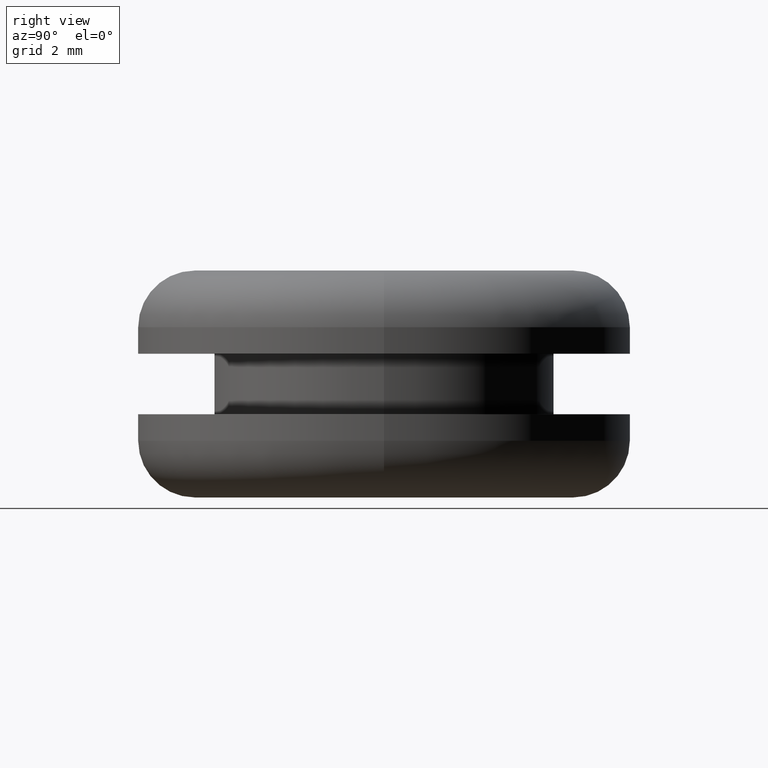
[diagram: clean part render]
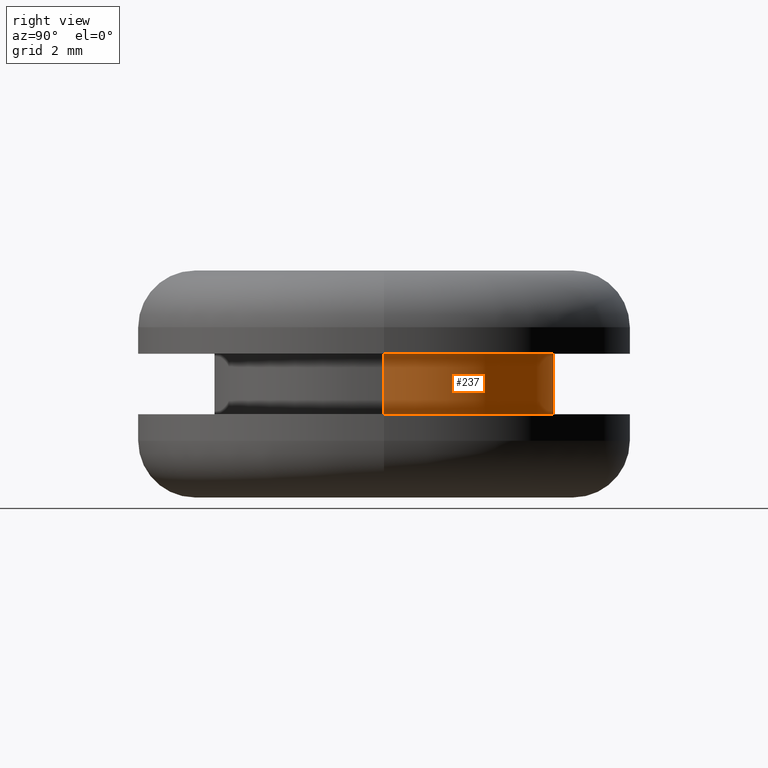
[diagram: same view with one face highlighted and labeled with its STEP entity id]
A machine part, right view. The second image highlights one B-rep face of the part: STEP entity #237.
In plain terms, the highlighted cylindrical surface (partial cylindrical patch) has radius 4.5 mm, axis along (0, 0, -1).
Its self-contained STEP definition (entity closure, byte-faithful):
#1 = CARTESIAN_POINT ( 'NONE',  ( 99.71049378546730700, 0.0000000000000000000, 141.7985603604342100 ) ) ;
#9 = EDGE_CURVE ( 'NONE', #292, #150, #102, .T. ) ;
#51 = CARTESIAN_POINT ( 'NONE',  ( 108.7104937855071000, 5.510910596187446600E-016, 140.1985603604344100 ) ) ;
#54 = AXIS2_PLACEMENT_3D ( 'NONE', #380, #226, #425 ) ;
#86 = CYLINDRICAL_SURFACE ( 'NONE', #100, 4.500000000019890800 ) ;
#89 = ORIENTED_EDGE ( 'NONE', *, *, #159, .F. ) ;
#91 = CARTESIAN_POINT ( 'NONE',  ( 108.7104937855071000, 5.510910596187446600E-016, 141.7985603604342100 ) ) ;
#100 = AXIS2_PLACEMENT_3D ( 'NONE', #221, #211, #219 ) ;
#102 = CIRCLE ( 'NONE', #54, 4.500000000019890800 ) ;
#113 = EDGE_LOOP ( 'NONE', ( #402, #429, #89, #238 ) ) ;
#129 = VECTOR ( 'NONE', #378, 1000.000000000000000 ) ;
#132 = EDGE_CURVE ( 'NONE', #150, #188, #168, .T. ) ;
#150 = VERTEX_POINT ( 'NONE', #91 ) ;
#157 = CIRCLE ( 'NONE', #340, 4.500000000019890800 ) ;
#159 = EDGE_CURVE ( 'NONE', #355, #188, #157, .T. ) ;
#168 = LINE ( 'NONE', #436, #262 ) ;
#188 = VERTEX_POINT ( 'NONE', #51 ) ;
#209 = EDGE_CURVE ( 'NONE', #292, #355, #345, .T. ) ;
#211 = DIRECTION ( 'NONE',  ( 0.0000000000000000000, 0.0000000000000000000, -1.000000000000000000 ) ) ;
#219 = DIRECTION ( 'NONE',  ( -1.000000000000000000, 0.0000000000000000000, 0.0000000000000000000 ) ) ;
#221 = CARTESIAN_POINT ( 'NONE',  ( 104.2104937854872000, 0.0000000000000000000, 0.0000000000000000000 ) ) ;
#224 = CARTESIAN_POINT ( 'NONE',  ( 99.71049378546730700, 0.0000000000000000000, 0.0000000000000000000 ) ) ;
#226 = DIRECTION ( 'NONE',  ( 0.0000000000000000000, 0.0000000000000000000, -1.000000000000000000 ) ) ;
#233 = CARTESIAN_POINT ( 'NONE',  ( 99.71049378546730700, 0.0000000000000000000, 140.1985603604344100 ) ) ;
#237 = ADVANCED_FACE ( 'NONE', ( #414 ), #86, .T. ) ;
#238 = ORIENTED_EDGE ( 'NONE', *, *, #209, .F. ) ;
#245 = DIRECTION ( 'NONE',  ( -1.000000000000000000, 0.0000000000000000000, 0.0000000000000000000 ) ) ;
#262 = VECTOR ( 'NONE', #379, 1000.000000000000000 ) ;
#292 = VERTEX_POINT ( 'NONE', #1 ) ;
#340 = AXIS2_PLACEMENT_3D ( 'NONE', #461, #356, #245 ) ;
#345 = LINE ( 'NONE', #224, #129 ) ;
#355 = VERTEX_POINT ( 'NONE', #233 ) ;
#356 = DIRECTION ( 'NONE',  ( 0.0000000000000000000, 0.0000000000000000000, -1.000000000000000000 ) ) ;
#378 = DIRECTION ( 'NONE',  ( 0.0000000000000000000, 0.0000000000000000000, -1.000000000000000000 ) ) ;
#379 = DIRECTION ( 'NONE',  ( 0.0000000000000000000, 0.0000000000000000000, -1.000000000000000000 ) ) ;
#380 = CARTESIAN_POINT ( 'NONE',  ( 104.2104937854872000, 0.0000000000000000000, 141.7985603604342100 ) ) ;
#402 = ORIENTED_EDGE ( 'NONE', *, *, #9, .T. ) ;
#414 = FACE_OUTER_BOUND ( 'NONE', #113, .T. ) ;
#425 = DIRECTION ( 'NONE',  ( -1.000000000000000000, 0.0000000000000000000, 0.0000000000000000000 ) ) ;
#429 = ORIENTED_EDGE ( 'NONE', *, *, #132, .T. ) ;
#436 = CARTESIAN_POINT ( 'NONE',  ( 108.7104937855071000, 5.510910596187447600E-016, 0.0000000000000000000 ) ) ;
#461 = CARTESIAN_POINT ( 'NONE',  ( 104.2104937854872000, 0.0000000000000000000, 140.1985603604344100 ) ) ;